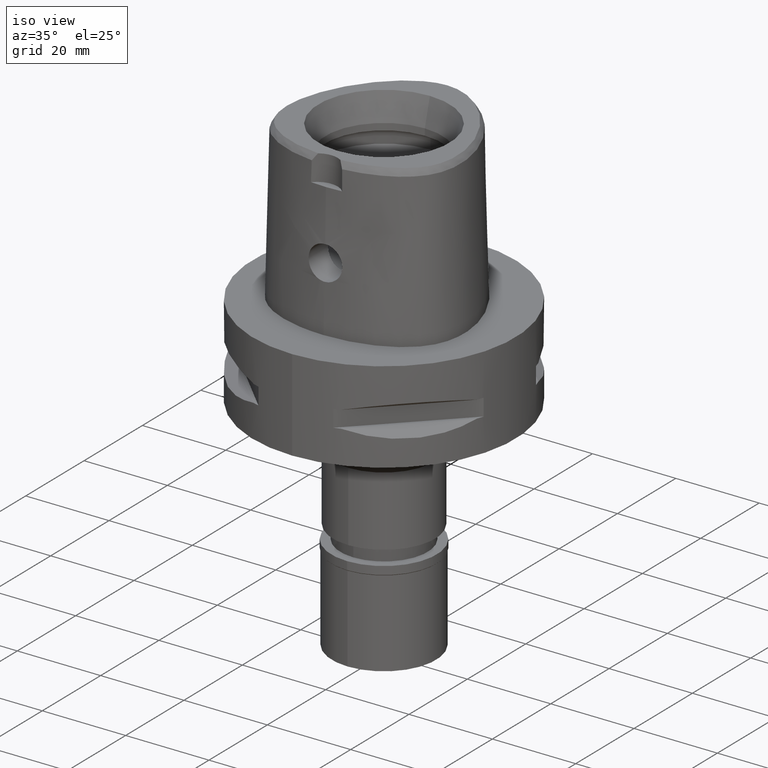
[diagram: clean part render]
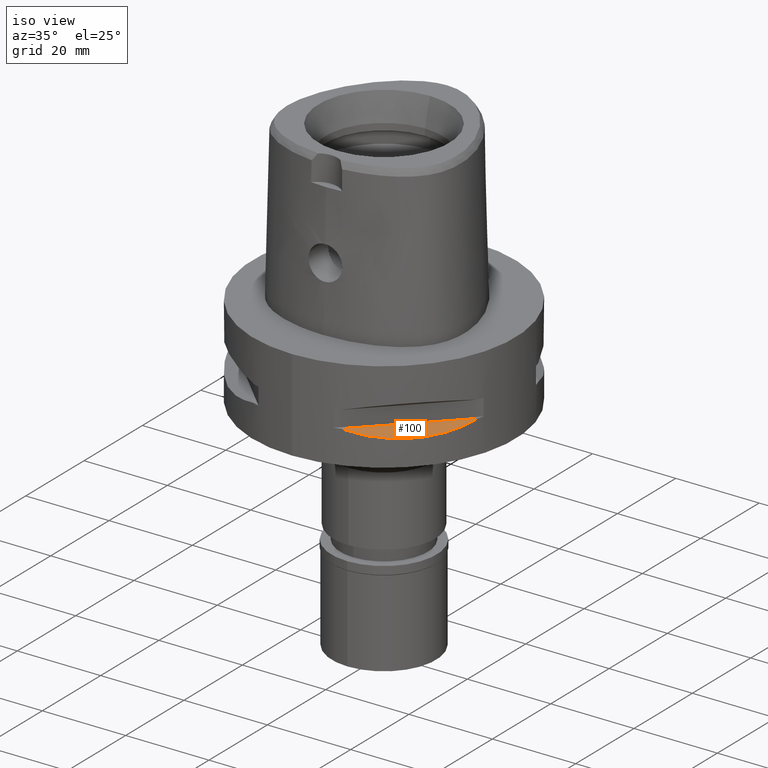
[diagram: same view with one face highlighted and labeled with its STEP entity id]
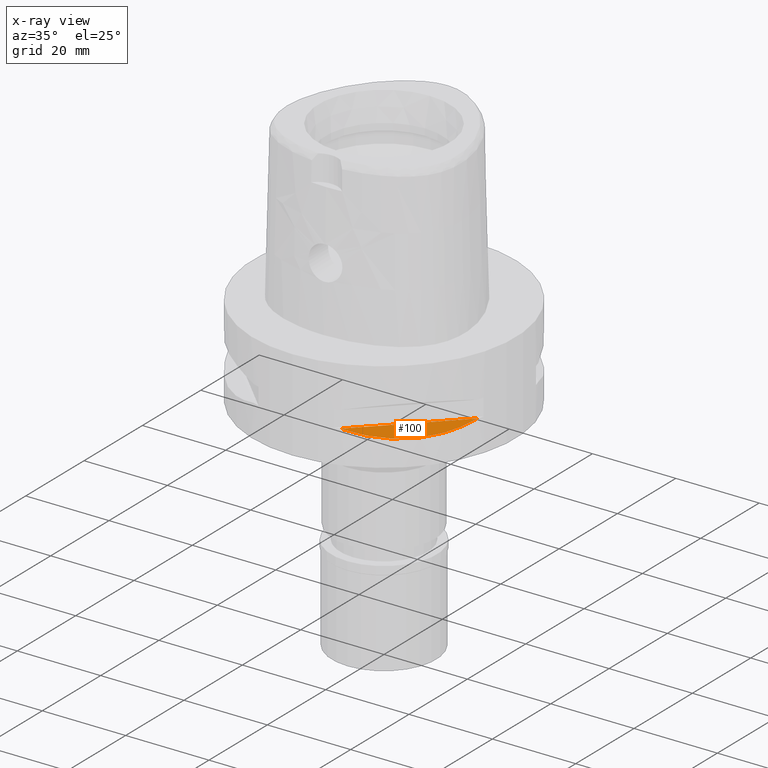
[diagram: x-ray of the same camera — body ghosted, the highlighted face saturated]
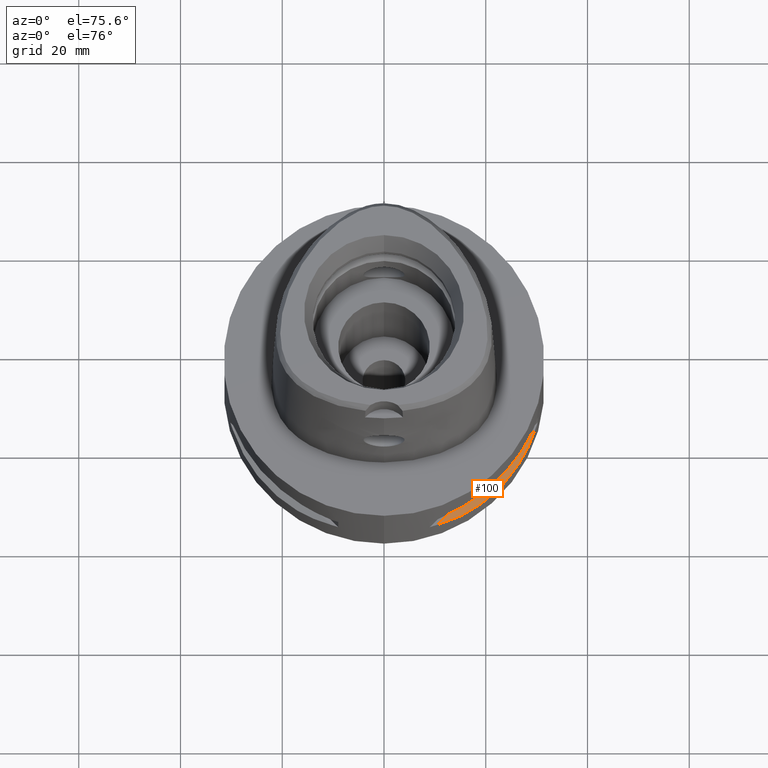
[diagram: same view with one face highlighted and labeled with its STEP entity id]
A machine part, iso view. The second image highlights one B-rep face of the part: STEP entity #100.
The next image is the same camera in x-ray: the body ghosted, the highlighted face saturated — about 0% of this face is hidden behind the body in this view.
A second angle (auxiliary view) of the same face is appended — the face is thin or edge-on in the first view.
In plain terms, the highlighted planar face has unit normal (-0.3536, 0.3536, -0.866).
Its self-contained STEP definition (entity closure, byte-faithful):
#25 = CARTESIAN_POINT ( 'NONE',  ( 24.23018836746430082, -20.18579225685413903, -15.78559396979327367 ) ) ;
#100 = ADVANCED_FACE ( 'NONE', ( #1559 ), #2712, .F. ) ;
#209 = CARTESIAN_POINT ( 'NONE',  ( 10.44775724750000023, -29.71690375017999841, -14.05000000000000071 ) ) ;
#239 = CARTESIAN_POINT ( 'NONE',  ( 15.11986997311391612, -27.64634172017876068, -15.11207862404153524 ) ) ;
#358 = CARTESIAN_POINT ( 'NONE',  ( 26.48642424310703447, -17.05047092244371854, -15.42670883407968674 ) ) ;
#410 = CARTESIAN_POINT ( 'NONE',  ( 16.48208282229545318, -26.84474411198741350, -15.34094883778379348 ) ) ;
#1519 = CARTESIAN_POINT ( 'NONE',  ( 23.08532645888790213, -21.46242677077769656, -15.83938991065623014 ) ) ;
#1539 = CARTESIAN_POINT ( 'NONE',  ( 29.71690375017999841, -10.44775724750000023, -14.05000000000000071 ) ) ;
#1547 = CARTESIAN_POINT ( 'NONE',  ( 16.89910283486696940, -26.58330558444649583, -15.40446471307537202 ) ) ;
#1559 = FACE_OUTER_BOUND ( 'NONE', #2910, .T. ) ;
#1746 = CARTESIAN_POINT ( 'NONE',  ( 16.03138450079309862, -27.11872488589068553, -15.26880420108148506 ) ) ;
#1863 = CARTESIAN_POINT ( 'NONE',  ( 26.29071741524046146, -17.35163608579731687, -15.46976201925743055 ) ) ;
#1991 = B_SPLINE_CURVE_WITH_KNOTS ( 'NONE', 3,
 ( #209, #3197, #2479, #239, #1746, #410, #3712, #4064, #4130, #1547, #3386, #4498, #1519, #25, #3737, #2238, #1863, #2961, #358, #4546, #2578, #2991, #3336, #1539 ),
 .UNSPECIFIED., .F., .F.,
 ( 4, 1, 1, 1, 1, 1, 2, 2, 2, 1, 1, 1, 1, 1, 2, 2, 4 ),
 ( 0.0000000000000000000, 0.1250000000000017486, 0.1875000000000026090, 0.2187500000000033029, 0.2343750000000038858, 0.2421875000000042744, 0.2460937500000044686, 0.2500000000000046629, 0.5000000000000101030, 0.6250000000000126565, 0.6875000000000138778, 0.7187500000000146549, 0.7343750000000150990, 0.7421875000000150990, 0.7460937500000149880, 0.7500000000000149880, 1.000000000000000000 ),
 .UNSPECIFIED. ) ;
#2033 = CARTESIAN_POINT ( 'NONE',  ( 10.44775724750000023, -29.71690375017999841, -14.05000000000000071 ) ) ;
#2238 = CARTESIAN_POINT ( 'NONE',  ( 26.01217882835248929, -17.76952662671760308, -15.52665221626392800 ) ) ;
#2262 = EDGE_CURVE ( 'NONE', #2662, #2968, #1991, .T. ) ;
#2347 = CARTESIAN_POINT ( 'NONE',  ( 10.44775724750000023, -29.71690375017999841, -14.05000000000000071 ) ) ;
#2429 = CARTESIAN_POINT ( 'NONE',  ( 29.71690375017999841, -10.44775724750000023, -14.05000000000000071 ) ) ;
#2479 = CARTESIAN_POINT ( 'NONE',  ( 13.25636937905766999, -28.62019653468112068, -14.74888225542022369 ) ) ;
#2578 = CARTESIAN_POINT ( 'NONE',  ( 26.54368690921823060, -16.96123479565122238, -15.41365572341632095 ) ) ;
#2662 = VERTEX_POINT ( 'NONE', #2033 ) ;
#2663 = DIRECTION ( 'NONE',  ( 0.7071067811865474617, 0.7071067811865474617, 0.0000000000000000000 ) ) ;
#2669 = DIRECTION ( 'NONE',  ( -0.9258200997725358761, 0.0000000000000000000, 0.3779644730092654448 ) ) ;
#2712 = PLANE ( 'NONE',  #2875 ) ;
#2875 = AXIS2_PLACEMENT_3D ( 'NONE', #4226, #3797, #2669 ) ;
#2910 = EDGE_LOOP ( 'NONE', ( #2942, #3854 ) ) ;
#2942 = ORIENTED_EDGE ( 'NONE', *, *, #4321, .F. ) ;
#2961 = CARTESIAN_POINT ( 'NONE',  ( 26.42800887047804181, -17.14106442934815533, -15.43984550238795350 ) ) ;
#2968 = VERTEX_POINT ( 'NONE', #2429 ) ;
#2991 = CARTESIAN_POINT ( 'NONE',  ( 27.86285265926851551, -14.89252659056515427, -15.10765629751784012 ) ) ;
#3048 = LINE ( 'NONE', #2347, #4685 ) ;
#3197 = CARTESIAN_POINT ( 'NONE',  ( 11.58970337495594194, -29.31542262584231651, -14.35229357167384912 ) ) ;
#3336 = CARTESIAN_POINT ( 'NONE',  ( 28.91382665369116722, -12.73197616787390629, -14.65467361753813513 ) ) ;
#3386 = CARTESIAN_POINT ( 'NONE',  ( 18.86897208075735222, -25.32725744466094753, -15.69588095933972838 ) ) ;
#3712 = CARTESIAN_POINT ( 'NONE',  ( 16.70616724746230730, -26.70521063584596888, -15.37546661818052307 ) ) ;
#3737 = CARTESIAN_POINT ( 'NONE',  ( 25.43927894892505392, -18.59229662064599609, -15.62866126334696482 ) ) ;
#3797 = DIRECTION ( 'NONE',  ( -0.3535533905933049836, 0.3535533905933054277, -0.8660254037844130615 ) ) ;
#3854 = ORIENTED_EDGE ( 'NONE', *, *, #2262, .T. ) ;
#4064 = CARTESIAN_POINT ( 'NONE',  ( 16.80193241490862022, -26.64486562695897121, -15.38992683736031708 ) ) ;
#4130 = CARTESIAN_POINT ( 'NONE',  ( 16.86571563436881149, -26.60451452154907059, -15.39949295786330197 ) ) ;
#4226 = CARTESIAN_POINT ( 'NONE',  ( 32.45669916960000023, -7.707961828074000543, -14.05000000000000071 ) ) ;
#4321 = EDGE_CURVE ( 'NONE', #2662, #2968, #3048, .T. ) ;
#4498 = CARTESIAN_POINT ( 'NONE',  ( 20.65093790435025767, -23.89673728057072211, -15.83935804902266931 ) ) ;
#4546 = CARTESIAN_POINT ( 'NONE',  ( 26.52527364208797778, -16.98999780422225214, -15.41788098766626369 ) ) ;
#4685 = VECTOR ( 'NONE', #2663, 1000.000000000000114 ) ;